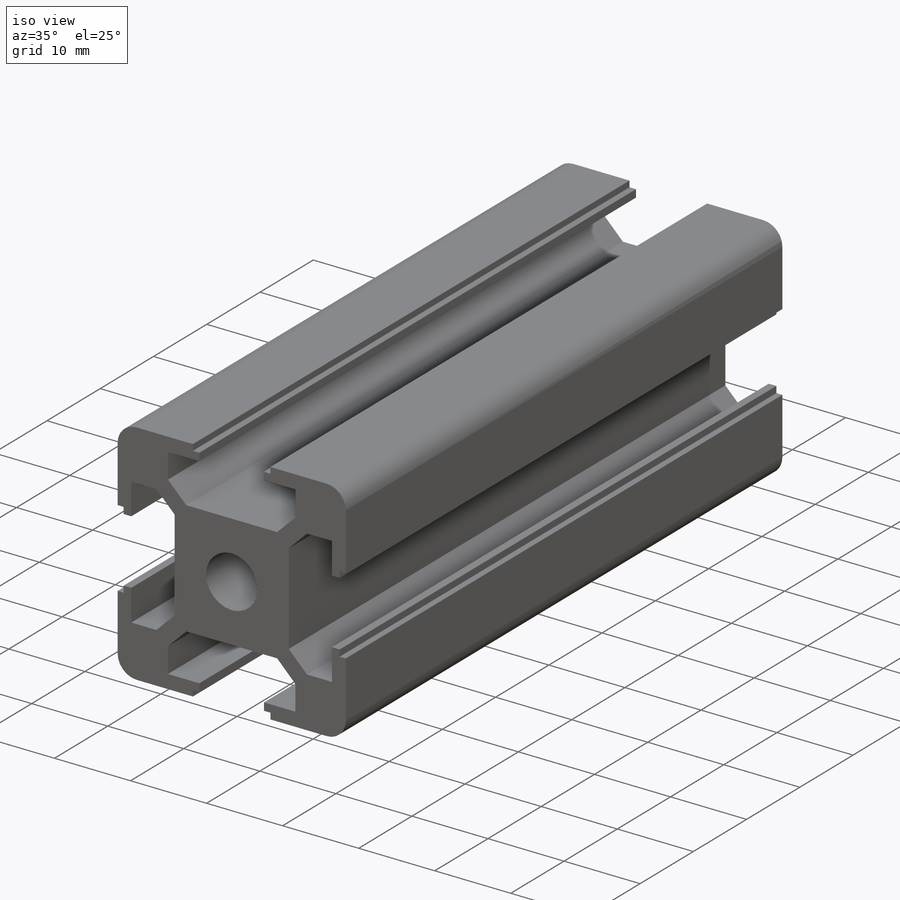
[diagram: iso view]
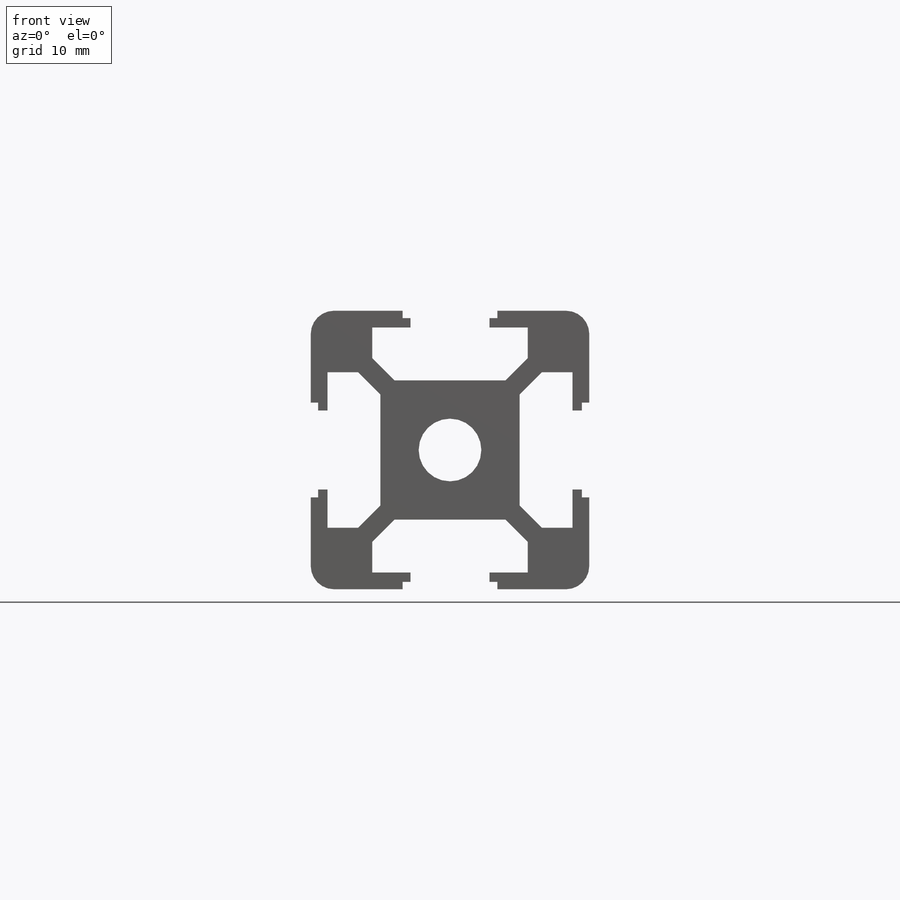
[diagram: front view]
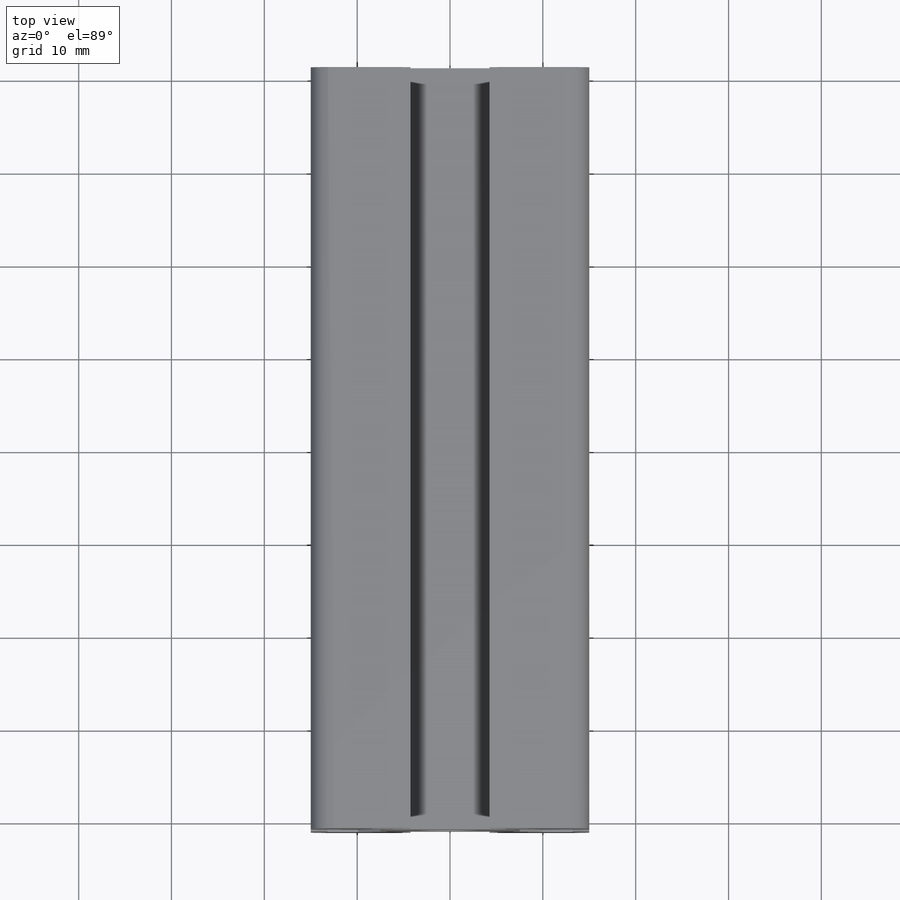
[diagram: top view]
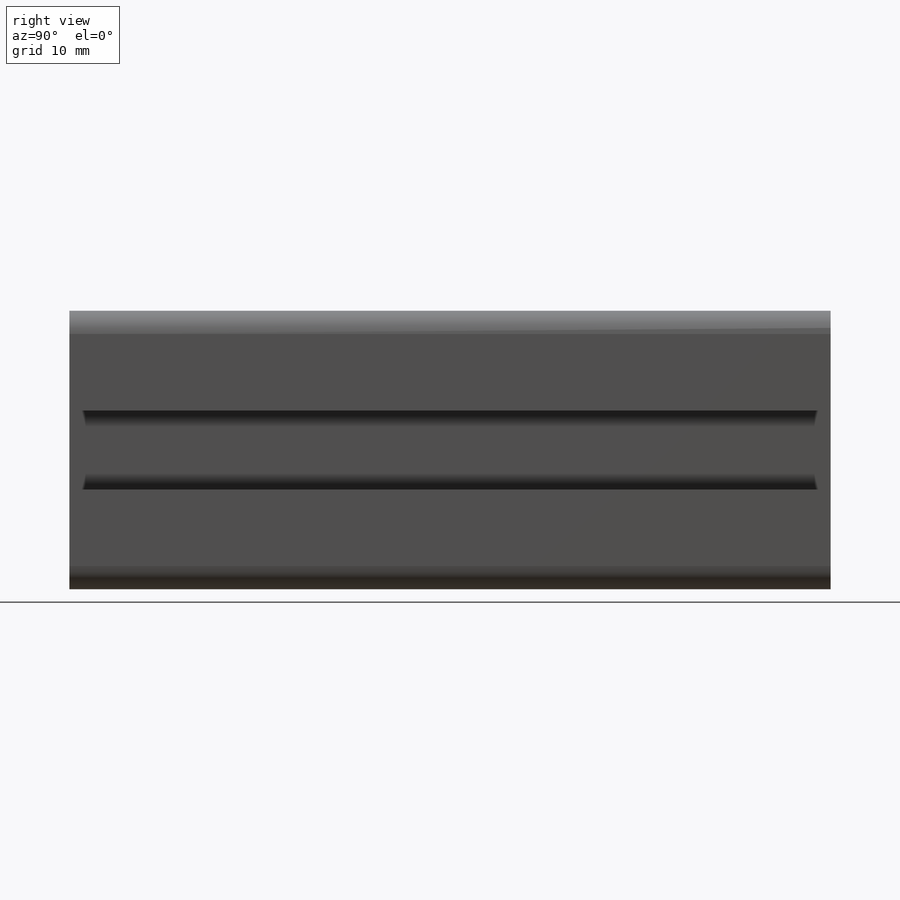
[diagram: right view]
SOLIDWORKS PART (.sldprt)
format: sldprt  version: not decoded by parser v0  size: 556,544 bytes
history: native  units: mm
features: sketch x3, cut_extrude x2, thread x2, material x1, extrude x1, fillet x1, mirror x1, pattern_circular x1 (+12 scaffold rows collapsed)
feature tree (24):
  scaffold x12  (default folders/planes/origin — collapsed)
  material  "Material <not specified>"
  sketch  "Sketch1"  dims[D1=30.0mm D2=30.0mm]
  extrude  "Boss-Extrude1"  Depth=330mm
  sketch  "Sketch2"  dims[D1=6.75mm]
  cut_extrude  "Cut-Extrude1"  [1 undecoded]
  thread  "Cosmetic Thread1"  Diameter=12mm  [1 undecoded]
  thread  "Cosmetic Thread2"  Diameter=12mm  [1 undecoded]
  fillet  "Fillet1"  Radius=2.5mm
  sketch  "Sketch3"  dims[c1.D1=5.1mm c1.D2=4.25mm c1.D3=1.8mm c1.D4=1.0mm c1.D5=3.3mm c1.D6=8.375mm c1.D7=4.6mm c1.D8=7.5mm c2.D7=3.775mm c3.D7=135.0deg]
  cut_extrude  "Cut-Extrude2"  [1 undecoded]
  mirror  "Mirror1"
  pattern_circular  "CirPattern1"  Count=4 Angle=360deg
decode coverage: 8 of 11 modeling features carry decoded parameters
note: 4 parameter values undecoded
note: suppression state not decoded; provenance and decode notes live in map.json
